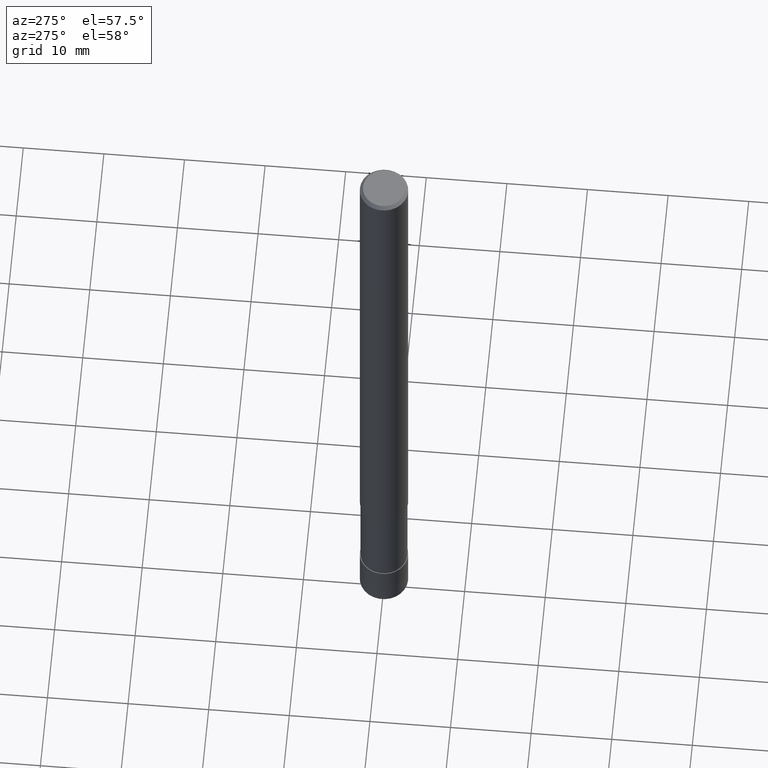
[diagram: clean part render]
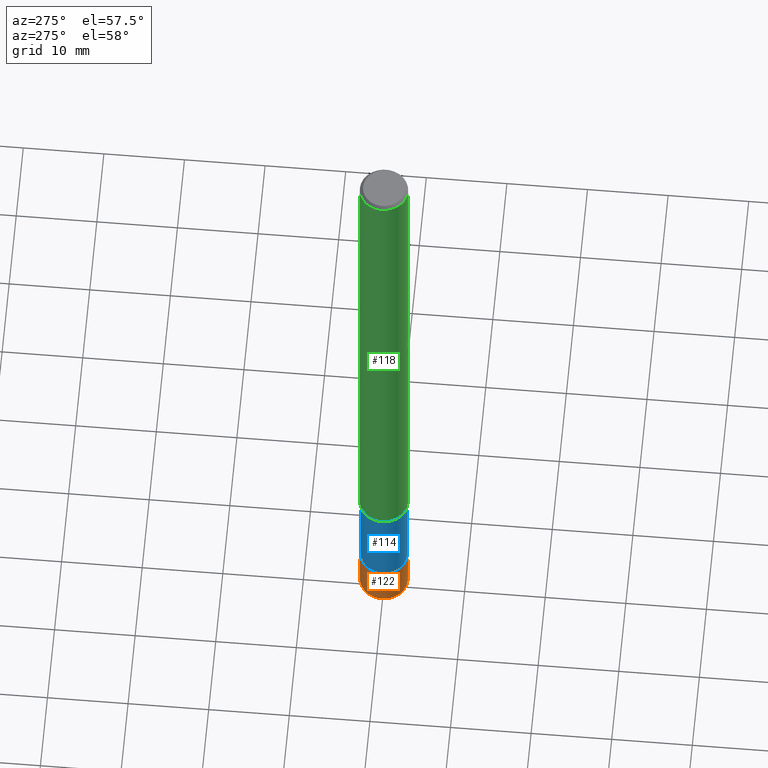
[diagram: same view with three faces highlighted in distinct colors, each labeled with its STEP entity id]
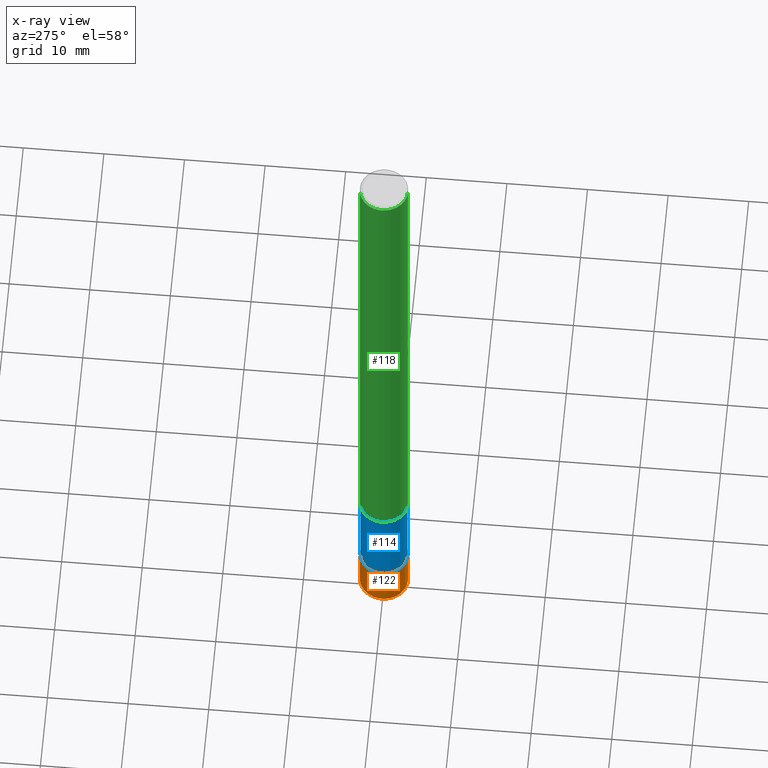
[diagram: x-ray of the same camera — body ghosted, the three highlighted faces saturated]
A machine part, auxiliary view with three faces highlighted in distinct colors.
The next image is the same camera in x-ray (body ghosted, the three faces saturated) — at least one of them is partly hidden behind the body in this view.
Their STEP definitions:

[orange] entity #122 — the highlighted conical surface has half-angle 0.001 deg.
#102=EDGE_CURVE('',#174,#164,#240,.T.);
#116=EDGE_CURVE('',#164,#206,#259,.T.);
#122=ADVANCED_FACE('',(#266),#267,.T.);
#144=VERTEX_POINT('',#290);
#164=VERTEX_POINT('',#313);
#170=EDGE_CURVE('',#144,#206,#320,.T.);
#174=VERTEX_POINT('',#324);
#196=EDGE_CURVE('',#144,#174,#348,.T.);
#206=VERTEX_POINT('',#358);
#240=CIRCLE('',#388,2.9999);
#259=LINE('',#409,#410);
#266=FACE_OUTER_BOUND('',#418,.T.);
#267=CONICAL_SURFACE('',#419,2.99995,1.75438596473599E-005);
#290=CARTESIAN_POINT('',(3.67381906146713E-016,-3.0,-89.7));
#313=CARTESIAN_POINT('',(0.0,2.9999,-84.0));
#320=CIRCLE('',#486,3.0);
#324=CARTESIAN_POINT('',(3.67369660083175E-016,-2.9999,-84.0));
#348=LINE('',#519,#520);
#358=CARTESIAN_POINT('',(0.0,3.0,-89.7));
#388=AXIS2_PLACEMENT_3D('',#551,#552,#553);
#409=CARTESIAN_POINT('',(-3.67375783114944E-016,2.99995,-86.85));
#410=VECTOR('',#587,1.0);
#418=EDGE_LOOP('',(#600,#601,#602,#603));
#419=AXIS2_PLACEMENT_3D('',#604,#605,#606);
#486=AXIS2_PLACEMENT_3D('',#674,#675,#676);
#519=CARTESIAN_POINT('',(3.67375783114944E-016,-2.99995,-86.85));
#520=VECTOR('',#702,1.0);
#551=CARTESIAN_POINT('',(0.0,0.0,-84.0));
#552=DIRECTION('',(0.0,0.0,-1.0));
#553=DIRECTION('',(0.0,1.0,0.0));
#587=DIRECTION('',(-2.14843219936228E-021,1.75438596464599E-005,-0.999999999846107));
#600=ORIENTED_EDGE('',*,*,#116,.T.);
#601=ORIENTED_EDGE('',*,*,#170,.F.);
#602=ORIENTED_EDGE('',*,*,#196,.T.);
#603=ORIENTED_EDGE('',*,*,#102,.T.);
#604=CARTESIAN_POINT('',(0.0,0.0,-86.85));
#605=DIRECTION('',(0.0,-0.0,-1.0));
#606=DIRECTION('',(0.0,1.0,0.0));
#674=CARTESIAN_POINT('',(0.0,0.0,-89.7));
#675=DIRECTION('',(0.0,0.0,-1.0));
#676=DIRECTION('',(0.0,1.0,0.0));
#702=DIRECTION('',(-2.14843219936229E-021,1.75438596464599E-005,0.999999999846107));

[blue] entity #114 — the highlighted cylindrical surface (edge-blend (fillet) strip) has radius 2.9099 mm, axis along (-0, -0, 1).
#94=EDGE_CURVE('',#104,#192,#231,.T.);
#104=VERTEX_POINT('',#242);
#114=ADVANCED_FACE('',(#256),#257,.T.);
#120=EDGE_CURVE('',#150,#104,#264,.T.);
#132=EDGE_CURVE('',#188,#192,#278,.T.);
#150=VERTEX_POINT('',#296);
#176=EDGE_CURVE('',#188,#150,#326,.T.);
#188=VERTEX_POINT('',#340);
#192=VERTEX_POINT('',#344);
#231=LINE('',#376,#377);
#242=CARTESIAN_POINT('',(0.0,2.90995,-72.0));
#256=FACE_OUTER_BOUND('',#405,.T.);
#257=CYLINDRICAL_SURFACE('',#406,2.90995);
#264=CIRCLE('',#416,2.90995);
#278=CIRCLE('',#433,2.90995);
#296=CARTESIAN_POINT('',(3.56354325930543E-016,-2.90995,-72.0));
#326=LINE('',#494,#495);
#340=CARTESIAN_POINT('',(3.56354325930543E-016,-2.90995,-84.0));
#344=CARTESIAN_POINT('',(0.0,2.90995,-84.0));
#376=CARTESIAN_POINT('',(-3.56354325930543E-016,2.90995,-78.0));
#377=VECTOR('',#541,1.0);
#405=EDGE_LOOP('',(#580,#581,#582,#583));
#406=AXIS2_PLACEMENT_3D('',#584,#585,#586);
#416=AXIS2_PLACEMENT_3D('',#596,#597,#598);
#433=AXIS2_PLACEMENT_3D('',#619,#620,#621);
#494=CARTESIAN_POINT('',(3.56354325930543E-016,-2.90995,-78.0));
#495=VECTOR('',#680,1.0);
#541=DIRECTION('',(0.0,0.0,-1.0));
#580=ORIENTED_EDGE('',*,*,#94,.T.);
#581=ORIENTED_EDGE('',*,*,#132,.F.);
#582=ORIENTED_EDGE('',*,*,#176,.T.);
#583=ORIENTED_EDGE('',*,*,#120,.T.);
#584=CARTESIAN_POINT('',(0.0,0.0,-78.0));
#585=DIRECTION('',(-0.0,-0.0,1.0));
#586=DIRECTION('',(0.0,1.0,0.0));
#596=CARTESIAN_POINT('',(0.0,0.0,-72.0));
#597=DIRECTION('',(0.0,0.0,-1.0));
#598=DIRECTION('',(0.0,1.0,0.0));
#619=CARTESIAN_POINT('',(0.0,0.0,-84.0));
#620=DIRECTION('',(0.0,0.0,-1.0));
#621=DIRECTION('',(0.0,1.0,0.0));
#680=DIRECTION('',(-0.0,-0.0,1.0));

[green] entity #118 — the highlighted cylindrical surface (edge-blend (fillet) strip) has radius 3 mm, axis along (-0, -0, 1).
#96=VERTEX_POINT('',#233);
#118=ADVANCED_FACE('',(#261),#262,.T.);
#126=VERTEX_POINT('',#272);
#138=EDGE_CURVE('',#202,#96,#284,.T.);
#140=VERTEX_POINT('',#286);
#148=EDGE_CURVE('',#202,#140,#294,.T.);
#198=EDGE_CURVE('',#140,#126,#350,.T.);
#202=VERTEX_POINT('',#354);
#204=EDGE_CURVE('',#126,#96,#356,.T.);
#233=CARTESIAN_POINT('',(0.0,3.0,-72.0));
#261=FACE_OUTER_BOUND('',#412,.T.);
#262=CYLINDRICAL_SURFACE('',#413,3.0);
#272=CARTESIAN_POINT('',(0.0,3.0,-0.400000000000006));
#284=CIRCLE('',#443,3.0);
#286=CARTESIAN_POINT('',(3.67381906146713E-016,-3.0,-0.400000000000006));
#294=LINE('',#456,#457);
#350=CIRCLE('',#523,3.0);
#354=CARTESIAN_POINT('',(3.67381906146713E-016,-3.0,-72.0));
#356=LINE('',#532,#533);
#412=EDGE_LOOP('',(#589,#590,#591,#592));
#413=AXIS2_PLACEMENT_3D('',#593,#594,#595);
#443=AXIS2_PLACEMENT_3D('',#626,#627,#628);
#456=CARTESIAN_POINT('',(3.67381906146713E-016,-3.0,-36.2));
#457=VECTOR('',#635,1.0);
#523=AXIS2_PLACEMENT_3D('',#703,#704,#705);
#532=CARTESIAN_POINT('',(-3.67381906146713E-016,3.0,-36.2));
#533=VECTOR('',#707,1.0);
#589=ORIENTED_EDGE('',*,*,#204,.T.);
#590=ORIENTED_EDGE('',*,*,#138,.F.);
#591=ORIENTED_EDGE('',*,*,#148,.T.);
#592=ORIENTED_EDGE('',*,*,#198,.T.);
#593=CARTESIAN_POINT('',(0.0,0.0,-36.2));
#594=DIRECTION('',(-0.0,-0.0,1.0));
#595=DIRECTION('',(0.0,1.0,0.0));
#626=CARTESIAN_POINT('',(0.0,0.0,-72.0));
#627=DIRECTION('',(0.0,0.0,-1.0));
#628=DIRECTION('',(0.0,1.0,0.0));
#635=DIRECTION('',(-0.0,-0.0,1.0));
#703=CARTESIAN_POINT('',(0.0,0.0,-0.400000000000006));
#704=DIRECTION('',(0.0,0.0,-1.0));
#705=DIRECTION('',(0.0,1.0,0.0));
#707=DIRECTION('',(0.0,0.0,-1.0));